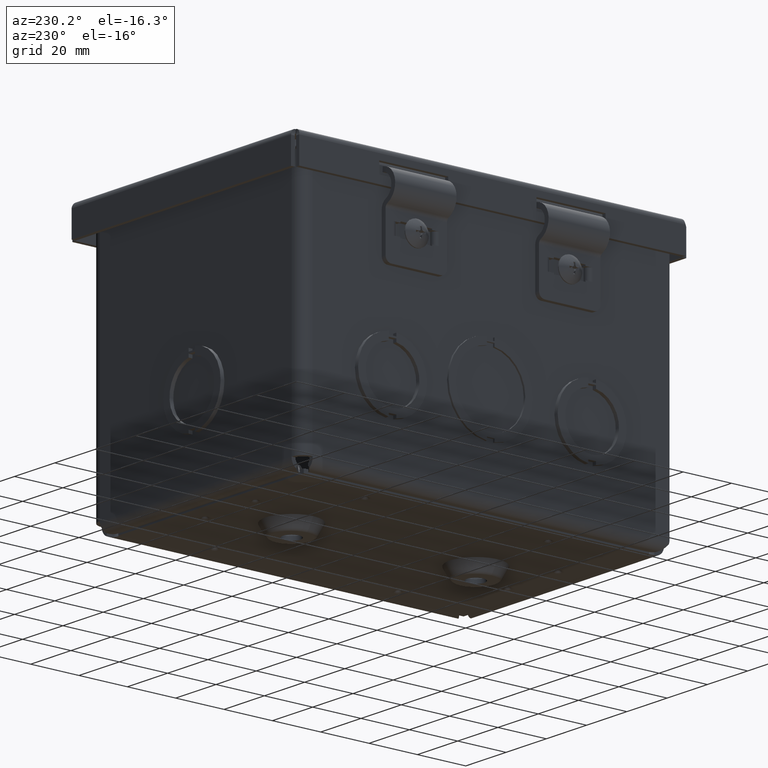
[diagram: clean part render]
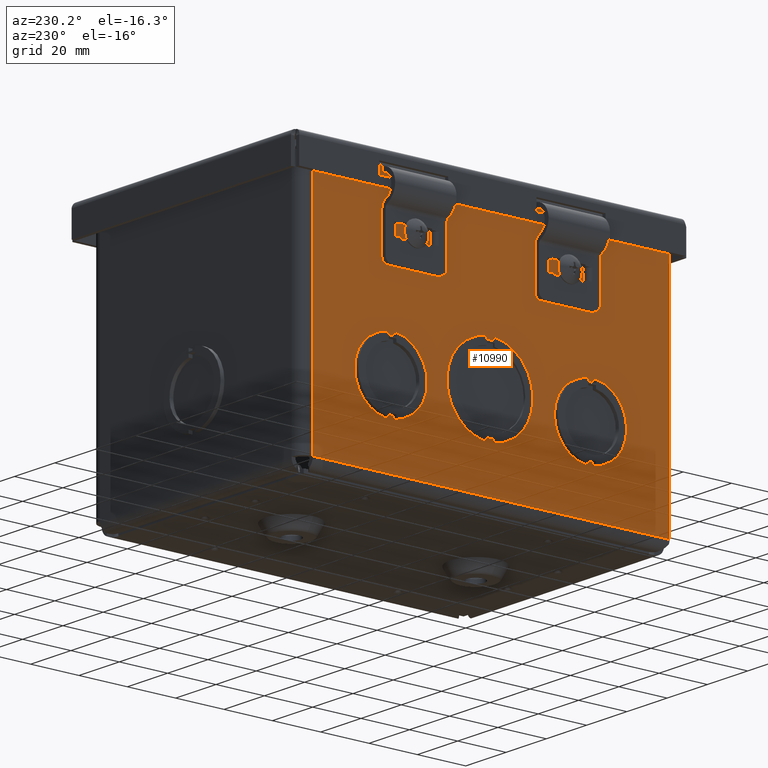
[diagram: same view with one face highlighted and labeled with its STEP entity id]
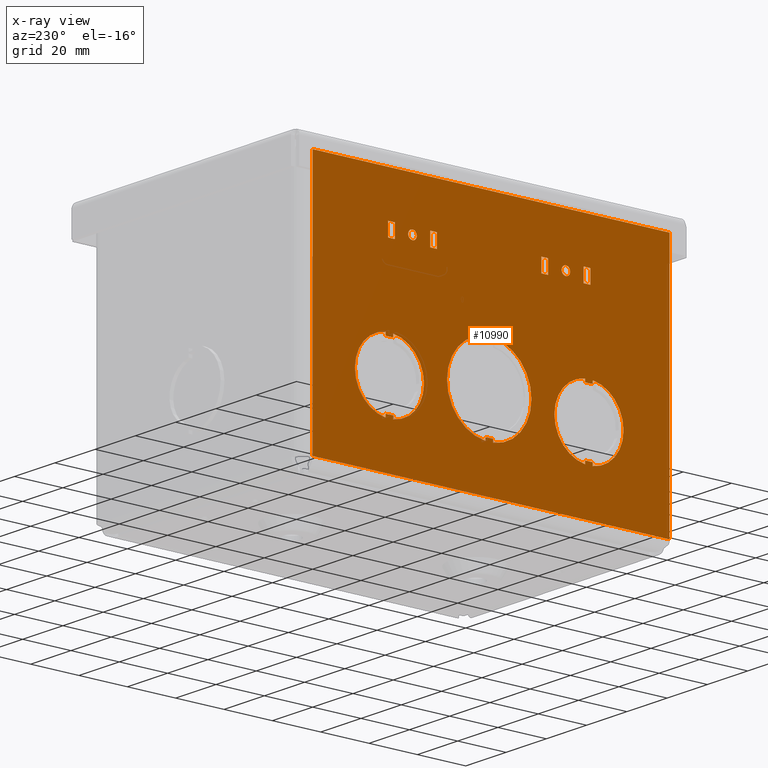
[diagram: x-ray of the same camera — body ghosted, the highlighted face saturated]
A machine part, auxiliary view. The second image highlights one B-rep face of the part: STEP entity #10990.
The next image is the same camera in x-ray: the body ghosted, the highlighted face saturated — about 0% of this face is hidden behind the body in this view.
In plain terms, the highlighted planar face has unit normal (1, -0, -0).
Its self-contained STEP definition (entity closure, byte-faithful):
#665=LINE($,#16885,#1695);
#669=LINE($,#16893,#1699);
#672=LINE($,#16899,#1702);
#675=LINE($,#16904,#1705);
#677=LINE($,#16909,#1707);
#681=LINE($,#16917,#1711);
#684=LINE($,#16923,#1714);
#687=LINE($,#16928,#1717);
#689=LINE($,#16943,#1719);
#693=LINE($,#16951,#1723);
#696=LINE($,#16957,#1726);
#699=LINE($,#16962,#1729);
#701=LINE($,#16967,#1731);
#705=LINE($,#16975,#1735);
#708=LINE($,#16981,#1738);
#711=LINE($,#16986,#1741);
#726=LINE($,#17025,#1756);
#729=LINE($,#17031,#1759);
#732=LINE($,#17037,#1762);
#736=LINE($,#17049,#1766);
#739=LINE($,#17055,#1769);
#742=LINE($,#17059,#1772);
#779=LINE($,#17151,#1809);
#780=LINE($,#17153,#1810);
#781=LINE($,#17157,#1811);
#782=LINE($,#17159,#1812);
#783=LINE($,#17161,#1813);
#784=LINE($,#17164,#1814);
#785=LINE($,#17167,#1815);
#786=LINE($,#17169,#1816);
#787=LINE($,#17170,#1817);
#788=LINE($,#17171,#1818);
#789=LINE($,#17176,#1819);
#790=LINE($,#17178,#1820);
#791=LINE($,#17180,#1821);
#792=LINE($,#17184,#1822);
#793=LINE($,#17186,#1823);
#794=LINE($,#17187,#1824);
#1695=VECTOR($,#12949,0.109999999999998);
#1699=VECTOR($,#12955,0.218);
#1702=VECTOR($,#12960,0.110000000000001);
#1705=VECTOR($,#12965,0.218000000000001);
#1707=VECTOR($,#12969,0.218);
#1711=VECTOR($,#12975,0.109999999999998);
#1714=VECTOR($,#12980,0.218);
#1717=VECTOR($,#12985,0.109999999999998);
#1719=VECTOR($,#13001,0.218000000000006);
#1723=VECTOR($,#13007,0.109999999999998);
#1726=VECTOR($,#13012,0.218000000000006);
#1729=VECTOR($,#13017,0.109999999999998);
#1731=VECTOR($,#13021,0.110000000000001);
#1735=VECTOR($,#13027,0.218);
#1738=VECTOR($,#13032,0.110000000000001);
#1741=VECTOR($,#13037,0.218);
#1756=VECTOR($,#13072,0.0499947152542758);
#1759=VECTOR($,#13077,0.125000000214516);
#1762=VECTOR($,#13082,0.0499947152542758);
#1766=VECTOR($,#13094,0.0499947152542758);
#1769=VECTOR($,#13099,0.125220388418772);
#1772=VECTOR($,#13104,0.0499947152542754);
#1809=VECTOR($,#13187,0.125220388418769);
#1810=VECTOR($,#13188,0.0499947152542754);
#1811=VECTOR($,#13191,0.0499947152542758);
#1812=VECTOR($,#13192,0.125000000214518);
#1813=VECTOR($,#13193,0.0499947152542758);
#1814=VECTOR($,#13196,0.0499947152542754);
#1815=VECTOR($,#13197,5.813);
#1816=VECTOR($,#13198,4.0005);
#1817=VECTOR($,#13199,5.813);
#1818=VECTOR($,#13200,4.0005);
#1819=VECTOR($,#13203,0.0499999999999999);
#1820=VECTOR($,#13204,0.125000000177006);
#1821=VECTOR($,#13205,0.0499999999999999);
#1822=VECTOR($,#13208,0.0499999999999999);
#1823=VECTOR($,#13209,0.125000000177006);
#1824=VECTOR($,#13210,0.0499999999999996);
#2594=PLANE($,#11717);
#2974=FACE_BOUND($,#3906,.T.);
#2975=FACE_BOUND($,#3907,.T.);
#2976=FACE_BOUND($,#3908,.T.);
#2977=FACE_BOUND($,#3909,.T.);
#2978=FACE_BOUND($,#3910,.T.);
#2979=FACE_BOUND($,#3911,.T.);
#2980=FACE_BOUND($,#3912,.T.);
#2981=FACE_BOUND($,#3913,.T.);
#2982=FACE_BOUND($,#3914,.T.);
#2983=FACE_BOUND($,#3915,.T.);
#3906=EDGE_LOOP($,(#7943,#7944,#7945,#7946));
#3907=EDGE_LOOP($,(#7947,#7948,#7949,#7950));
#3908=EDGE_LOOP($,(#7951));
#3909=EDGE_LOOP($,(#7952));
#3910=EDGE_LOOP($,(#7953,#7954,#7955,#7956));
#3911=EDGE_LOOP($,(#7957,#7958,#7959,#7960));
#3912=EDGE_LOOP($,(#7961,#7962,#7963,#7964,#7965,#7966,#7967,#7968));
#3913=EDGE_LOOP($,(#7969,#7970,#7971,#7972));
#3914=EDGE_LOOP($,(#7973,#7974,#7975,#7976,#7977,#7978,#7979,#7980));
#3915=EDGE_LOOP($,(#7981,#7982,#7983,#7984,#7985,#7986,#7987,#7988));
#4495=CIRCLE($,#11665,0.07);
#4497=CIRCLE($,#11668,0.07);
#4501=CIRCLE($,#11685,0.5625);
#4503=CIRCLE($,#11691,0.5625);
#4511=CIRCLE($,#11718,0.5625);
#4512=CIRCLE($,#11719,0.5625);
#4513=CIRCLE($,#11720,0.6875);
#4514=CIRCLE($,#11721,0.6875);
#4960=VERTEX_POINT($,#16818);
#4964=VERTEX_POINT($,#16883);
#4965=VERTEX_POINT($,#16884);
#4968=VERTEX_POINT($,#16892);
#4970=VERTEX_POINT($,#16898);
#4972=VERTEX_POINT($,#16907);
#4973=VERTEX_POINT($,#16908);
#4976=VERTEX_POINT($,#16916);
#4978=VERTEX_POINT($,#16922);
#4981=VERTEX_POINT($,#16933);
#4983=VERTEX_POINT($,#16938);
#4984=VERTEX_POINT($,#16941);
#4985=VERTEX_POINT($,#16942);
#4988=VERTEX_POINT($,#16950);
#4990=VERTEX_POINT($,#16956);
#4992=VERTEX_POINT($,#16965);
#4993=VERTEX_POINT($,#16966);
#4996=VERTEX_POINT($,#16974);
#4998=VERTEX_POINT($,#16980);
#5010=VERTEX_POINT($,#17016);
#5011=VERTEX_POINT($,#17018);
#5013=VERTEX_POINT($,#17024);
#5015=VERTEX_POINT($,#17030);
#5017=VERTEX_POINT($,#17036);
#5019=VERTEX_POINT($,#17042);
#5021=VERTEX_POINT($,#17048);
#5023=VERTEX_POINT($,#17054);
#5054=VERTEX_POINT($,#17149);
#5055=VERTEX_POINT($,#17150);
#5056=VERTEX_POINT($,#17152);
#5057=VERTEX_POINT($,#17154);
#5058=VERTEX_POINT($,#17156);
#5059=VERTEX_POINT($,#17158);
#5060=VERTEX_POINT($,#17160);
#5061=VERTEX_POINT($,#17162);
#5062=VERTEX_POINT($,#17165);
#5063=VERTEX_POINT($,#17166);
#5064=VERTEX_POINT($,#17168);
#5065=VERTEX_POINT($,#17172);
#5066=VERTEX_POINT($,#17173);
#5067=VERTEX_POINT($,#17175);
#5068=VERTEX_POINT($,#17177);
#5069=VERTEX_POINT($,#17179);
#5070=VERTEX_POINT($,#17181);
#5071=VERTEX_POINT($,#17183);
#5072=VERTEX_POINT($,#17185);
#5984=EDGE_CURVE($,#4964,#4965,#665,.T.);
#5988=EDGE_CURVE($,#4968,#4964,#669,.T.);
#5991=EDGE_CURVE($,#4970,#4968,#672,.T.);
#5994=EDGE_CURVE($,#4965,#4970,#675,.T.);
#5996=EDGE_CURVE($,#4972,#4973,#677,.T.);
#6000=EDGE_CURVE($,#4976,#4972,#681,.T.);
#6003=EDGE_CURVE($,#4978,#4976,#684,.T.);
#6006=EDGE_CURVE($,#4973,#4978,#687,.T.);
#6009=EDGE_CURVE($,#4981,#4981,#4495,.T.);
#6011=EDGE_CURVE($,#4983,#4983,#4497,.T.);
#6012=EDGE_CURVE($,#4984,#4985,#689,.T.);
#6016=EDGE_CURVE($,#4988,#4984,#693,.T.);
#6019=EDGE_CURVE($,#4990,#4988,#696,.T.);
#6022=EDGE_CURVE($,#4985,#4990,#699,.T.);
#6024=EDGE_CURVE($,#4992,#4993,#701,.T.);
#6028=EDGE_CURVE($,#4996,#4992,#705,.T.);
#6031=EDGE_CURVE($,#4998,#4996,#708,.T.);
#6034=EDGE_CURVE($,#4993,#4998,#711,.T.);
#6050=EDGE_CURVE($,#5011,#5010,#4501,.T.);
#6053=EDGE_CURVE($,#5013,#5011,#726,.T.);
#6056=EDGE_CURVE($,#5015,#5013,#729,.T.);
#6059=EDGE_CURVE($,#5017,#5015,#732,.T.);
#6062=EDGE_CURVE($,#5019,#5017,#4503,.T.);
#6065=EDGE_CURVE($,#5021,#5019,#736,.T.);
#6068=EDGE_CURVE($,#5023,#5021,#739,.T.);
#6071=EDGE_CURVE($,#5010,#5023,#742,.T.);
#6115=EDGE_CURVE($,#5054,#5055,#779,.T.);
#6116=EDGE_CURVE($,#5055,#5056,#780,.T.);
#6117=EDGE_CURVE($,#5056,#5057,#4511,.T.);
#6118=EDGE_CURVE($,#5057,#5058,#781,.T.);
#6119=EDGE_CURVE($,#5058,#5059,#782,.T.);
#6120=EDGE_CURVE($,#5059,#5060,#783,.T.);
#6121=EDGE_CURVE($,#5060,#5061,#4512,.T.);
#6122=EDGE_CURVE($,#5061,#5054,#784,.T.);
#6123=EDGE_CURVE($,#5062,#5063,#785,.T.);
#6124=EDGE_CURVE($,#5063,#5064,#786,.T.);
#6125=EDGE_CURVE($,#4960,#5064,#787,.T.);
#6126=EDGE_CURVE($,#5062,#4960,#788,.T.);
#6127=EDGE_CURVE($,#5065,#5066,#4513,.T.);
#6128=EDGE_CURVE($,#5066,#5067,#789,.T.);
#6129=EDGE_CURVE($,#5067,#5068,#790,.T.);
#6130=EDGE_CURVE($,#5068,#5069,#791,.T.);
#6131=EDGE_CURVE($,#5069,#5070,#4514,.T.);
#6132=EDGE_CURVE($,#5070,#5071,#792,.T.);
#6133=EDGE_CURVE($,#5071,#5072,#793,.T.);
#6134=EDGE_CURVE($,#5072,#5065,#794,.T.);
#7943=ORIENTED_EDGE($,*,*,#5984,.T.);
#7944=ORIENTED_EDGE($,*,*,#5994,.T.);
#7945=ORIENTED_EDGE($,*,*,#5991,.T.);
#7946=ORIENTED_EDGE($,*,*,#5988,.T.);
#7947=ORIENTED_EDGE($,*,*,#5996,.T.);
#7948=ORIENTED_EDGE($,*,*,#6006,.T.);
#7949=ORIENTED_EDGE($,*,*,#6003,.T.);
#7950=ORIENTED_EDGE($,*,*,#6000,.T.);
#7951=ORIENTED_EDGE($,*,*,#6009,.T.);
#7952=ORIENTED_EDGE($,*,*,#6011,.T.);
#7953=ORIENTED_EDGE($,*,*,#6012,.T.);
#7954=ORIENTED_EDGE($,*,*,#6022,.T.);
#7955=ORIENTED_EDGE($,*,*,#6019,.T.);
#7956=ORIENTED_EDGE($,*,*,#6016,.T.);
#7957=ORIENTED_EDGE($,*,*,#6024,.T.);
#7958=ORIENTED_EDGE($,*,*,#6034,.T.);
#7959=ORIENTED_EDGE($,*,*,#6031,.T.);
#7960=ORIENTED_EDGE($,*,*,#6028,.T.);
#7961=ORIENTED_EDGE($,*,*,#6115,.T.);
#7962=ORIENTED_EDGE($,*,*,#6116,.T.);
#7963=ORIENTED_EDGE($,*,*,#6117,.T.);
#7964=ORIENTED_EDGE($,*,*,#6118,.T.);
#7965=ORIENTED_EDGE($,*,*,#6119,.T.);
#7966=ORIENTED_EDGE($,*,*,#6120,.T.);
#7967=ORIENTED_EDGE($,*,*,#6121,.T.);
#7968=ORIENTED_EDGE($,*,*,#6122,.T.);
#7969=ORIENTED_EDGE($,*,*,#6123,.T.);
#7970=ORIENTED_EDGE($,*,*,#6124,.T.);
#7971=ORIENTED_EDGE($,*,*,#6125,.F.);
#7972=ORIENTED_EDGE($,*,*,#6126,.F.);
#7973=ORIENTED_EDGE($,*,*,#6127,.T.);
#7974=ORIENTED_EDGE($,*,*,#6128,.T.);
#7975=ORIENTED_EDGE($,*,*,#6129,.T.);
#7976=ORIENTED_EDGE($,*,*,#6130,.T.);
#7977=ORIENTED_EDGE($,*,*,#6131,.T.);
#7978=ORIENTED_EDGE($,*,*,#6132,.T.);
#7979=ORIENTED_EDGE($,*,*,#6133,.T.);
#7980=ORIENTED_EDGE($,*,*,#6134,.T.);
#7981=ORIENTED_EDGE($,*,*,#6068,.T.);
#7982=ORIENTED_EDGE($,*,*,#6065,.T.);
#7983=ORIENTED_EDGE($,*,*,#6062,.T.);
#7984=ORIENTED_EDGE($,*,*,#6059,.T.);
#7985=ORIENTED_EDGE($,*,*,#6056,.T.);
#7986=ORIENTED_EDGE($,*,*,#6053,.T.);
#7987=ORIENTED_EDGE($,*,*,#6050,.T.);
#7988=ORIENTED_EDGE($,*,*,#6071,.T.);
#10990=ADVANCED_FACE($,(#2974,#2975,#2976,#2977,#2978,#2979,#2980,#2981,
#2982,#2983),#2594,.F.);
#11665=AXIS2_PLACEMENT_3D($,#16934,#12991,#12992);
#11668=AXIS2_PLACEMENT_3D($,#16939,#12997,#12998);
#11685=AXIS2_PLACEMENT_3D($,#17019,#13066,#13067);
#11691=AXIS2_PLACEMENT_3D($,#17043,#13088,#13089);
#11717=AXIS2_PLACEMENT_3D($,#17148,#13185,#13186);
#11718=AXIS2_PLACEMENT_3D($,#17155,#13189,#13190);
#11719=AXIS2_PLACEMENT_3D($,#17163,#13194,#13195);
#11720=AXIS2_PLACEMENT_3D($,#17174,#13201,#13202);
#11721=AXIS2_PLACEMENT_3D($,#17182,#13206,#13207);
#12949=DIRECTION($,(-3.01880640306773E-014,-1.04889851725242E-015,-1.));
#12955=DIRECTION($,(7.26991478793588E-019,-1.,1.04889851725242E-015));
#12960=DIRECTION($,(3.01880640306773E-014,1.04889851725242E-015,1.));
#12965=DIRECTION($,(-7.26991478793588E-019,1.,-1.04889851725242E-015));
#12969=DIRECTION($,(7.26991478793588E-019,-1.,1.04889851725242E-015));
#12975=DIRECTION($,(3.01880640306773E-014,1.04889851725242E-015,1.));
#12980=DIRECTION($,(-7.26991478793588E-019,1.,-1.04889851725242E-015));
#12985=DIRECTION($,(-3.01880640306773E-014,-1.04889851725242E-015,-1.));
#12991=DIRECTION('center_axis',(1.,7.26991478762132E-019,-3.01880640306773E-014));
#12992=DIRECTION('ref_axis',(-3.31638349868424E-014,-1.04889851725242E-015,
-1.));
#12997=DIRECTION('center_axis',(1.,7.26991478762132E-019,-3.01880640306773E-014));
#12998=DIRECTION('ref_axis',(-2.75238907418581E-014,-1.04889851725242E-015,
-1.));
#13001=DIRECTION($,(7.26991478793588E-019,-1.,1.04889851725242E-015));
#13007=DIRECTION($,(3.01880640306773E-014,-5.40540315424996E-016,1.));
#13012=DIRECTION($,(-7.26991478793588E-019,1.,-1.04889851725242E-015));
#13017=DIRECTION($,(-3.01880640306773E-014,-1.84361793359113E-015,-1.));
#13021=DIRECTION($,(-3.01880640306773E-014,-1.84361793359111E-015,-1.));
#13027=DIRECTION($,(7.26991478793588E-019,-1.,1.04889851725242E-015));
#13032=DIRECTION($,(3.01880640306773E-014,-5.40540315424966E-016,1.));
#13037=DIRECTION($,(-7.26991478793588E-019,1.,-1.04889851725242E-015));
#13066=DIRECTION('center_axis',(1.,7.26991478762132E-019,-3.01880640306773E-014));
#13067=DIRECTION('ref_axis',(-3.37888217434231E-015,0.993779545397644,-0.111365233126194));
#13072=DIRECTION($,(-7.26991478793588E-019,1.,-1.04889851725242E-015));
#13077=DIRECTION($,(3.01880639362797E-014,5.85854353220651E-005,0.999999998283873));
#13082=DIRECTION($,(7.26991478793588E-019,-1.,1.04889851725242E-015));
#13088=DIRECTION('center_axis',(1.,7.26991478762132E-019,-3.01880640306773E-014));
#13089=DIRECTION('ref_axis',(3.37293782344452E-015,-0.993801478780263,0.111169333784829));
#13094=DIRECTION($,(7.26991478793588E-019,-1.,1.04889851725242E-015));
#13099=DIRECTION($,(-3.01880639362797E-014,-5.85854353218157E-005,-0.999999998283873));
#13104=DIRECTION($,(-7.26991478793588E-019,1.,-1.04889851725242E-015));
#13185=DIRECTION('center_axis',(1.,7.2699147876445E-019,-1.86649677169159E-014));
#13186=DIRECTION('ref_axis',(-1.91757720813257E-014,-1.53070088430425E-015,
-1.));
#13187=DIRECTION($,(-3.01880639362797E-014,-5.85854353218157E-005,-0.999999998283873));
#13188=DIRECTION($,(7.26991478793588E-019,-1.,1.04889851725242E-015));
#13189=DIRECTION('center_axis',(1.,7.26991478762132E-019,-3.01880640306773E-014));
#13190=DIRECTION('ref_axis',(3.68643224559376E-015,-0.993801478780263,0.111169333784829));
#13191=DIRECTION($,(7.26991478793588E-019,-1.,1.04889851725242E-015));
#13192=DIRECTION($,(3.01880639362797E-014,5.85854353220651E-005,0.999999998283873));
#13193=DIRECTION($,(-7.26991478793588E-019,1.,-1.04889851725242E-015));
#13194=DIRECTION('center_axis',(1.,7.26991478762132E-019,-3.01880640306773E-014));
#13195=DIRECTION('ref_axis',(-3.69292902717301E-015,0.993779545397644,-0.111365233126194));
#13196=DIRECTION($,(-7.26991478793588E-019,1.,-1.04889851725242E-015));
#13197=DIRECTION($,(2.34751849469959E-014,3.60925384334103E-016,1.));
#13198=DIRECTION($,(3.53300467820488E-018,1.,-3.38323987985349E-016));
#13199=DIRECTION($,(2.36895601768701E-014,3.36874251073288E-016,1.));
#13200=DIRECTION($,(-2.17672839083352E-018,1.,-3.39773724897409E-016));
#13201=DIRECTION('center_axis',(1.,7.26991478762132E-019,-3.01880640306773E-014));
#13202=DIRECTION('ref_axis',(-2.50326061217379E-015,0.995854356095965,-0.0909620879525734));
#13203=DIRECTION($,(-7.26991478793588E-019,1.,-1.04889851725242E-015));
#13204=DIRECTION($,(-3.0188063949241E-014,-5.32174063610982E-005,-0.999999998583954));
#13205=DIRECTION($,(7.26991478793588E-019,-1.,1.04889851725242E-015));
#13206=DIRECTION('center_axis',(1.,7.26991478762132E-019,-3.01880640306773E-014));
#13207=DIRECTION('ref_axis',(2.5032606121738E-015,-0.995854356095965,0.0909620879525738));
#13208=DIRECTION($,(7.26991478793588E-019,-1.,1.04889851725242E-015));
#13209=DIRECTION($,(3.0188063949241E-014,5.32174063610982E-005,0.999999998583954));
#13210=DIRECTION($,(-7.26991478793588E-019,1.,-1.04889851725242E-015));
#16818=CARTESIAN_POINT('',(-2.18950000000014,2.09375,0.124999999999972));
#16883=CARTESIAN_POINT('',(-2.18950000000016,-1.20275000000001,1.52399999999998));
#16884=CARTESIAN_POINT('',(-2.18950000000016,-1.20275000000001,1.41399999999998));
#16885=CARTESIAN_POINT($,(-2.18949999999991,-1.20275,9.68042937512758));
#16892=CARTESIAN_POINT('',(-2.18950000000016,-0.984750000000009,1.52399999999998));
#16893=CARTESIAN_POINT($,(-2.18950000000016,-0.492375000000008,1.52399999999998));
#16898=CARTESIAN_POINT('',(-2.18950000000016,-0.984750000000009,1.41399999999998));
#16899=CARTESIAN_POINT($,(-2.18949999999992,-0.98475,9.62542937512758));
#16904=CARTESIAN_POINT($,(-2.18950000000016,-0.601375000000009,1.41399999999998));
#16907=CARTESIAN_POINT('',(-2.18950000000006,-0.984750000000005,4.71099999999996));
#16908=CARTESIAN_POINT('',(-2.18950000000006,-1.20275000000001,4.71099999999997));
#16909=CARTESIAN_POINT($,(-2.18950000000006,-0.492375000000005,4.71099999999996));
#16916=CARTESIAN_POINT('',(-2.18950000000007,-0.984750000000006,4.60099999999997));
#16917=CARTESIAN_POINT($,(-2.18949999999987,-0.984749999999999,11.2189293751276));
#16922=CARTESIAN_POINT('',(-2.18950000000007,-1.20275000000001,4.60099999999997));
#16923=CARTESIAN_POINT($,(-2.18950000000007,-0.601375000000005,4.60099999999997));
#16928=CARTESIAN_POINT($,(-2.18949999999987,-1.20275,11.2739293751276));
#16933=CARTESIAN_POINT('',(-2.18950000000007,-1.09375,4.38199999999997));
#16934=CARTESIAN_POINT('Origin',(-2.18950000000012,-1.09375,4.31199999999997));
#16938=CARTESIAN_POINT('',(-2.18950000000015,-1.09375000000001,1.88299999999998));
#16939=CARTESIAN_POINT('Origin',(-2.18950000000011,-1.09375000000001,1.81299999999998));
#16941=CARTESIAN_POINT('',(-2.18950000000008,-0.984750000000004,4.02299999999997));
#16942=CARTESIAN_POINT('',(-2.18950000000008,-1.20275000000001,4.02299999999997));
#16943=CARTESIAN_POINT($,(-2.18950000000008,-0.492375000000004,4.02299999999997));
#16950=CARTESIAN_POINT('',(-2.18950000000009,-0.984750000000003,3.91299999999997));
#16951=CARTESIAN_POINT($,(-2.18949999999988,-0.984750000000007,10.8749293751276));
#16956=CARTESIAN_POINT('',(-2.18950000000009,-1.20275000000001,3.91299999999997));
#16957=CARTESIAN_POINT($,(-2.18950000000009,-0.601375000000008,3.91299999999997));
#16962=CARTESIAN_POINT($,(-2.18949999999988,-1.20275,10.9299293751276));
#16965=CARTESIAN_POINT('',(-2.18950000000014,-1.20275000000001,2.21199999999998));
#16966=CARTESIAN_POINT('',(-2.18950000000014,-1.20275000000001,2.10199999999998));
#16967=CARTESIAN_POINT($,(-2.1894999999999,-1.20274999999999,10.0244293751276));
#16974=CARTESIAN_POINT('',(-2.18950000000014,-0.984750000000008,2.21199999999998));
#16975=CARTESIAN_POINT($,(-2.18950000000014,-0.492375000000007,2.21199999999998));
#16980=CARTESIAN_POINT('',(-2.18950000000014,-0.984750000000008,2.10199999999998));
#16981=CARTESIAN_POINT($,(-2.18949999999991,-0.984750000000012,9.96942937512758));
#16986=CARTESIAN_POINT($,(-2.18950000000014,-0.601375000000008,2.10199999999998));
#17016=CARTESIAN_POINT('',(-2.18950000000016,0.252999005713846,1.50014294363346));
#17018=CARTESIAN_POINT('',(-2.18950000000016,1.37102065499335,1.49996724974601));
#17019=CARTESIAN_POINT('Origin',(-2.18950000000016,0.81200000000002,1.43749999999998));
#17024=CARTESIAN_POINT('',(-2.18950000000016,1.32102593973907,1.49996724974601));
#17025=CARTESIAN_POINT($,(-2.18950000000016,0.660512969869531,1.49996724974601));
#17030=CARTESIAN_POINT('',(-2.18950000000017,1.32101861655964,1.37496724974601));
#17031=CARTESIAN_POINT($,(-2.18949999999992,1.32150082783167,9.60587427552461));
#17036=CARTESIAN_POINT('',(-2.18950000000016,1.37101333181392,1.37496724974601));
#17037=CARTESIAN_POINT($,(-2.18950000000016,0.685506665906955,1.37496724974601));
#17042=CARTESIAN_POINT('',(-2.18950000000016,0.252991669622879,1.37492255542958));
#17043=CARTESIAN_POINT('Origin',(-2.18950000000016,0.81200000000002,1.43749999999998));
#17048=CARTESIAN_POINT('',(-2.18950000000016,0.302986384877155,1.37492255542958));
#17049=CARTESIAN_POINT($,(-2.18950000000016,0.151493192438574,1.37492255542958));
#17054=CARTESIAN_POINT('',(-2.18950000000016,0.302993720968121,1.50014294363346));
#17055=CARTESIAN_POINT($,(-2.18949999999991,0.303472267250955,9.66849194339894));
#17059=CARTESIAN_POINT($,(-2.18950000000016,0.126499502856919,1.50014294363346));
#17148=CARTESIAN_POINT('Origin',(-2.18949999999982,9.5049528749068E-015,
17.8368587502551));
#17149=CARTESIAN_POINT('',(-2.18950000000006,0.302993720968121,4.75014294363346));
#17150=CARTESIAN_POINT('',(-2.18950000000007,0.302986384877154,4.62492255542958));
#17151=CARTESIAN_POINT($,(-2.18949999999986,0.303377065918719,11.2934919489764));
#17152=CARTESIAN_POINT('',(-2.18950000000007,0.252991669622879,4.62492255542958));
#17153=CARTESIAN_POINT($,(-2.18950000000007,0.151493192438575,4.62492255542958));
#17154=CARTESIAN_POINT('',(-2.18950000000007,1.37101333181392,4.62496724974601));
#17155=CARTESIAN_POINT('Origin',(-2.1895000000001,0.81200000000002,4.68749999999998));
#17156=CARTESIAN_POINT('',(-2.18950000000007,1.32101861655964,4.62496724974601));
#17157=CARTESIAN_POINT($,(-2.18950000000007,0.685506665906957,4.62496724974601));
#17158=CARTESIAN_POINT('',(-2.18950000000006,1.32102593973907,4.74996724974601));
#17159=CARTESIAN_POINT($,(-2.18949999999987,1.32140562649944,11.230874281102));
#17160=CARTESIAN_POINT('',(-2.18950000000006,1.37102065499335,4.74996724974601));
#17161=CARTESIAN_POINT($,(-2.18950000000006,0.660512969869533,4.74996724974601));
#17162=CARTESIAN_POINT('',(-2.18950000000006,0.252999005713845,4.75014294363346));
#17163=CARTESIAN_POINT('Origin',(-2.1895000000001,0.81200000000002,4.68749999999998));
#17164=CARTESIAN_POINT($,(-2.18950000000006,0.126499502856921,4.75014294363346));
#17165=CARTESIAN_POINT('',(-2.18950000000014,-1.90675,0.124999999999977));
#17166=CARTESIAN_POINT('',(-2.18950000000001,-1.90675,5.93799999999997));
#17167=CARTESIAN_POINT($,(-2.18950000000011,-1.90675,1.63227989585458));
#17168=CARTESIAN_POINT('',(-2.18950000000001,2.09375,5.93799999999997));
#17169=CARTESIAN_POINT($,(-2.18950000000001,1.24306612137584E-015,5.93799999999997));
#17170=CARTESIAN_POINT($,(-2.18949999999999,2.09375,6.37023916683678));
#17171=CARTESIAN_POINT($,(-2.18950000000014,-2.09375,0.124999999999977));
#17172=CARTESIAN_POINT('',(-2.18950000000011,1.3716565219918,3.12496356453258));
#17173=CARTESIAN_POINT('',(-2.18950000000011,0.00235013018404522,3.12503643546737));
#17174=CARTESIAN_POINT('Origin',(-2.18950000000007,0.68700000000002,3.06249999999998));
#17175=CARTESIAN_POINT('',(-2.18950000000011,0.0523501301840451,3.12503643546737));
#17176=CARTESIAN_POINT($,(-2.18950000000011,0.0261750650920197,3.12503643546737));
#17177=CARTESIAN_POINT('',(-2.18950000000012,0.0523434780082405,3.00003643546737));
#17178=CARTESIAN_POINT($,(-2.18949999999989,0.0527382665346775,10.4184461790596));
#17179=CARTESIAN_POINT('',(-2.18950000000012,0.00234347800824063,3.00003643546737));
#17180=CARTESIAN_POINT($,(-2.18950000000012,0.00117173900411739,3.00003643546737));
#17181=CARTESIAN_POINT('',(-2.18950000000012,1.371649869816,2.99996356453258));
#17182=CARTESIAN_POINT('Origin',(-2.18950000000007,0.68700000000002,3.06249999999998));
#17183=CARTESIAN_POINT('',(-2.18950000000012,1.321649869816,2.99996356453258));
#17184=CARTESIAN_POINT($,(-2.18950000000012,0.660824934907995,2.99996356453258));
#17185=CARTESIAN_POINT('',(-2.18950000000011,1.3216565219918,3.12496356453258));
#17186=CARTESIAN_POINT($,(-2.18949999999989,1.32204798457194,10.4808759689951));
#17187=CARTESIAN_POINT($,(-2.18950000000011,0.685828260995898,3.12496356453258));